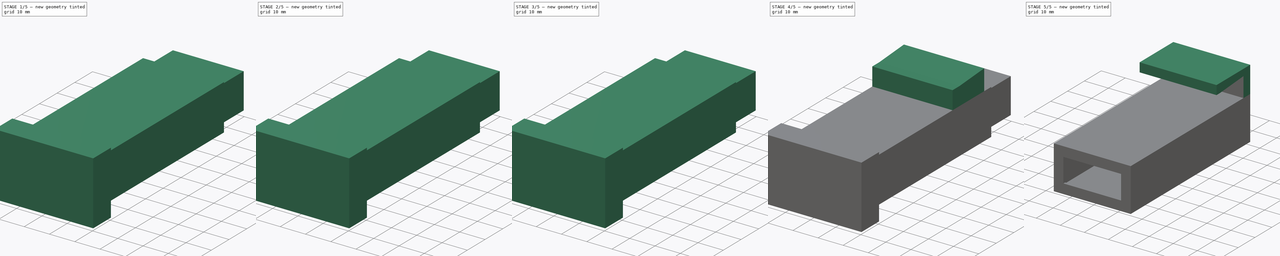
[diagram: build sequence overview — one tinted view per stage of 5, left to right]
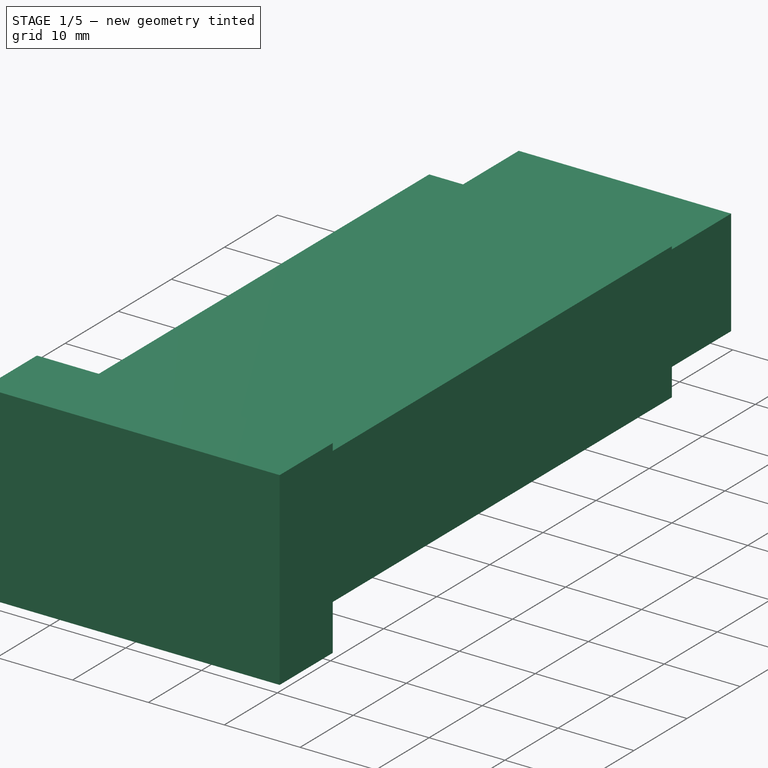
[diagram: stage 1 of 5 — iso view after this stage's code; geometry added in this stage tinted green]
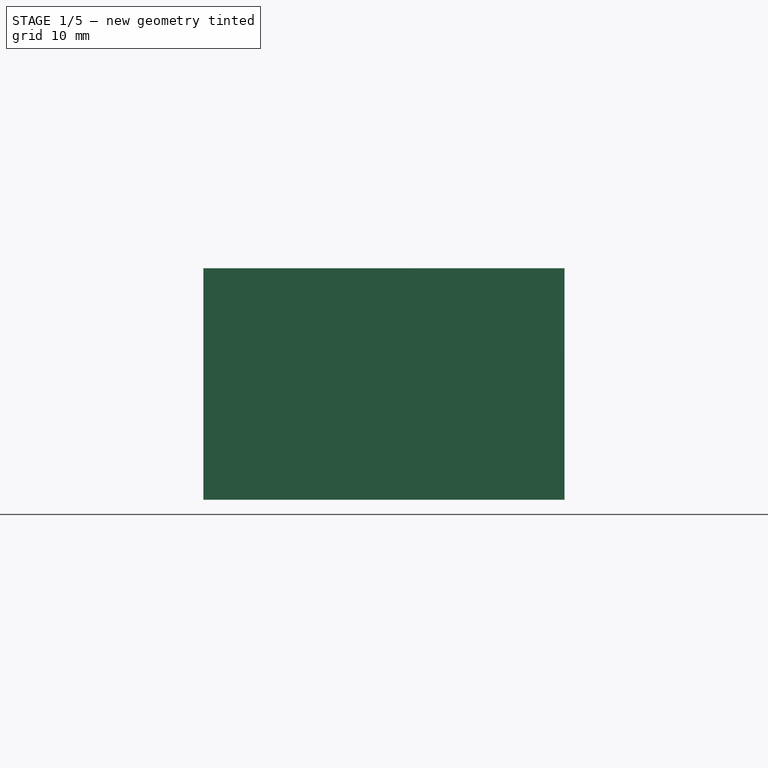
[diagram: stage 1 of 5 — front view after this stage's code; geometry added in this stage tinted green]
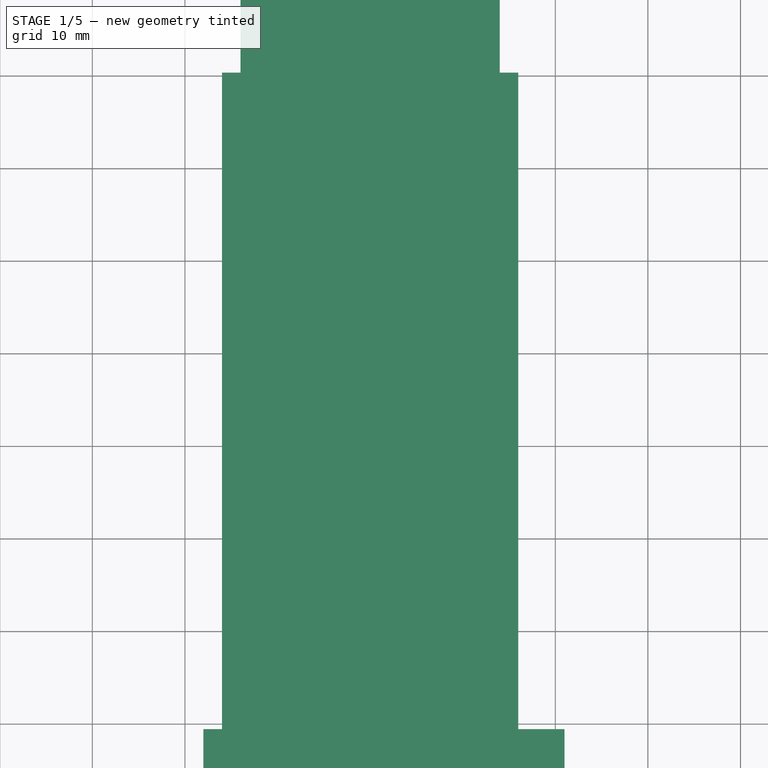
[diagram: stage 1 of 5 — top view after this stage's code; geometry added in this stage tinted green]
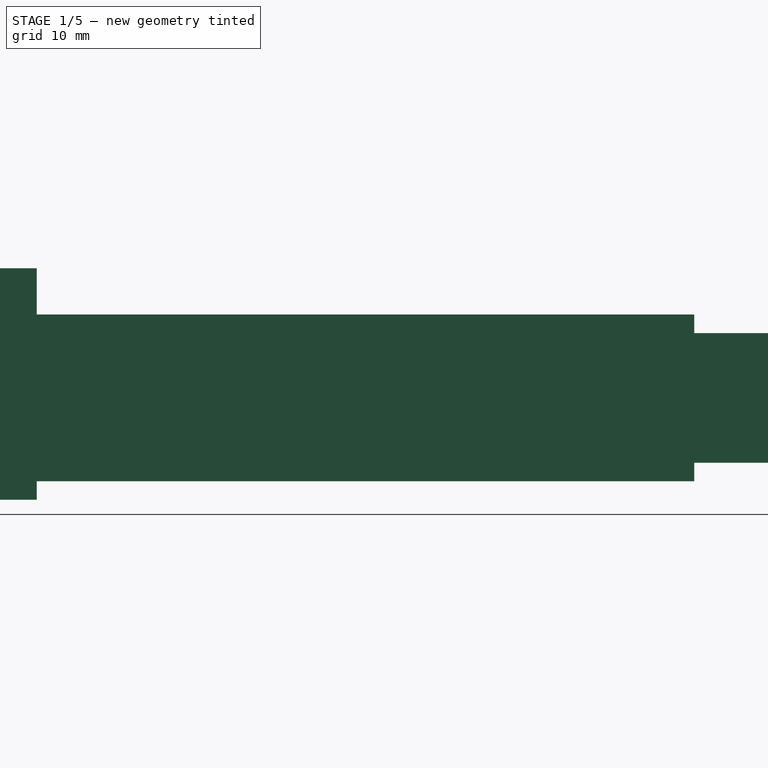
[diagram: stage 1 of 5 — right view after this stage's code; geometry added in this stage tinted green]
FCSTD DOCUMENT  (FreeCAD 0.20R)
Label: rtl_p53_holder
License: All rights reserved
LicenseURL: http://en.wikipedia.org/wiki/All_rights_reserved
objects: Part::Cut×15, Part::Feature×12, Part::Extrusion×11, Part::Box×5, Sketcher::SketchObject×1, Part::MultiFuse×1
note: 45 computed .brp shape members not serialized (recipe doc carries the construction recipe); baked Part::Feature solids carry a one-line shape summary decoded from their .brp

FEATURE [Part::Feature] Part__Feature  label="RTL SDR v2"
  shape: bbox 27 x 197.1 x 13.16 mm, 32 faces (baked)
FEATURE [Part::Box] Box  label="Cube"
  AttacherType = Attacher::AttachEngine3D
  Height = 18
  Length = 32
  Placement = pos=(-16,-3,-9) rot=(0,0,1;0rad)
  Width = 73
FEATURE [Part::Feature] Part__Feature001  label="RTL SDR v003"
  Placement = pos=(0,0,42) rot=(0,0,1;0rad)
  shape: bbox 27 x 197.1 x 13.16 mm, 32 faces (baked)
FEATURE [Part::Cut] Cut
  Base = -> Box
  Tool = -> Part__Feature
FEATURE [Part::Feature] Face004
  shape: bbox 0.9226 x 70 x 0.997 mm, 1 faces, 0 solids (baked)
FEATURE [Part::Extrusion] Extrusion004
  Base = -> Face004
  Dir = (-0.0737615,0,-0.0675222)
  DirMode = 0
  FaceMakerClass = Part::FaceMakerBullseye
  LengthFwd = 0
  LengthRev = 0
  Solid = true
  Symmetric = false
FEATURE [Part::Box] Box002  label="Cube002"
  AttacherType = Attacher::AttachEngine3D
  Height = 25
  Length = 39
  Placement = pos=(-18,-11,-11) rot=(0,0,1;0rad)
  Width = 10
FEATURE [Part::Box] Box003  label="Cube003"
  AttacherType = Attacher::AttachEngine3D
  Height = 10
  Length = 24
  Placement = pos=(-12,-4,-5) rot=(0,0,1;0rad)
  Width = 20
FEATURE [Part::Box] Box004  label="Cube004"
  AttacherType = Attacher::AttachEngine3D
  Height = 14
  Length = 28
  Placement = pos=(-14,0,-7) rot=(0,0,1;0rad)
  Width = 84
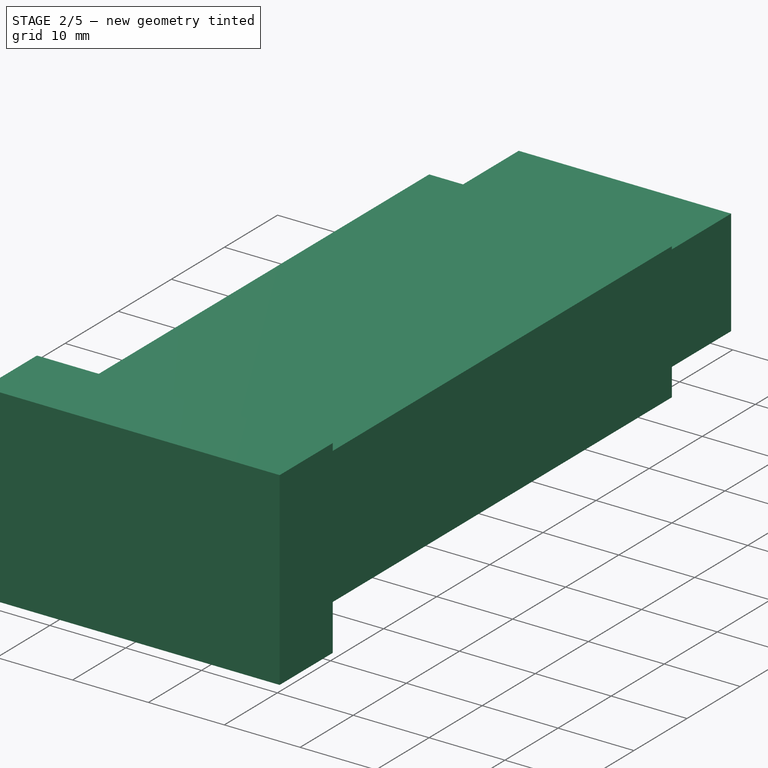
[diagram: stage 2 of 5 — iso view after this stage's code; geometry added in this stage tinted green]
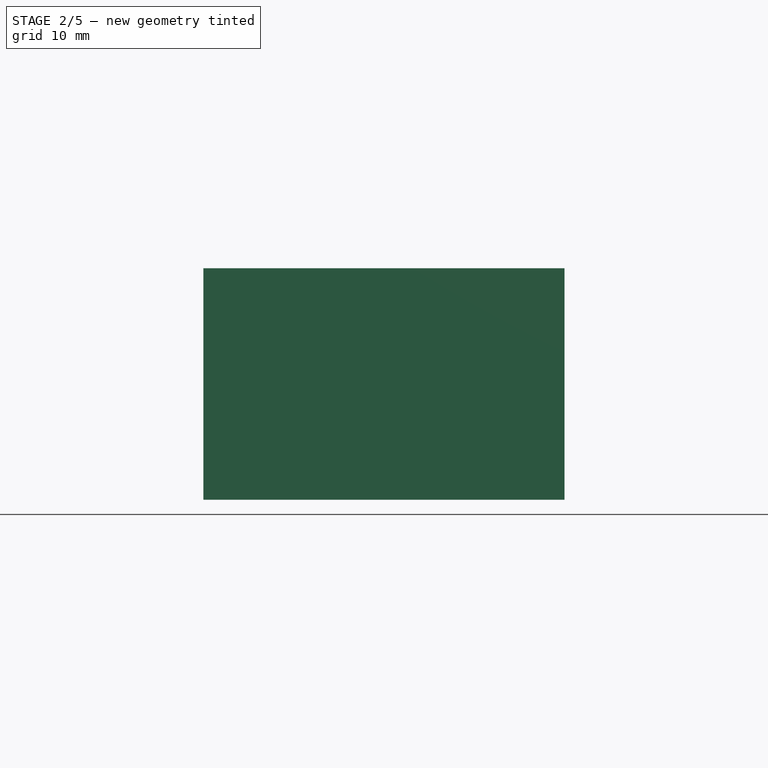
[diagram: stage 2 of 5 — front view after this stage's code; geometry added in this stage tinted green]
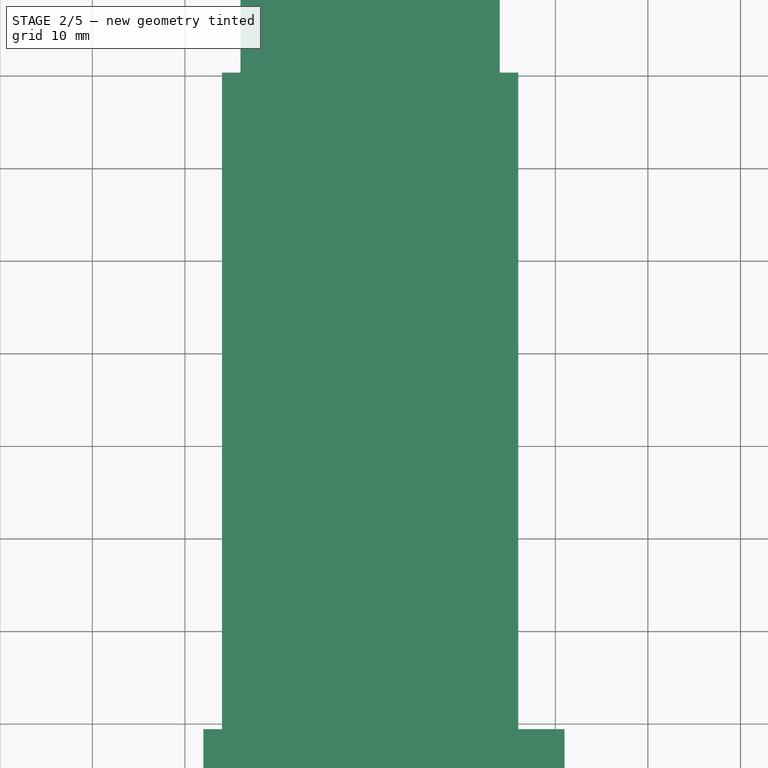
[diagram: stage 2 of 5 — top view after this stage's code; geometry added in this stage tinted green]
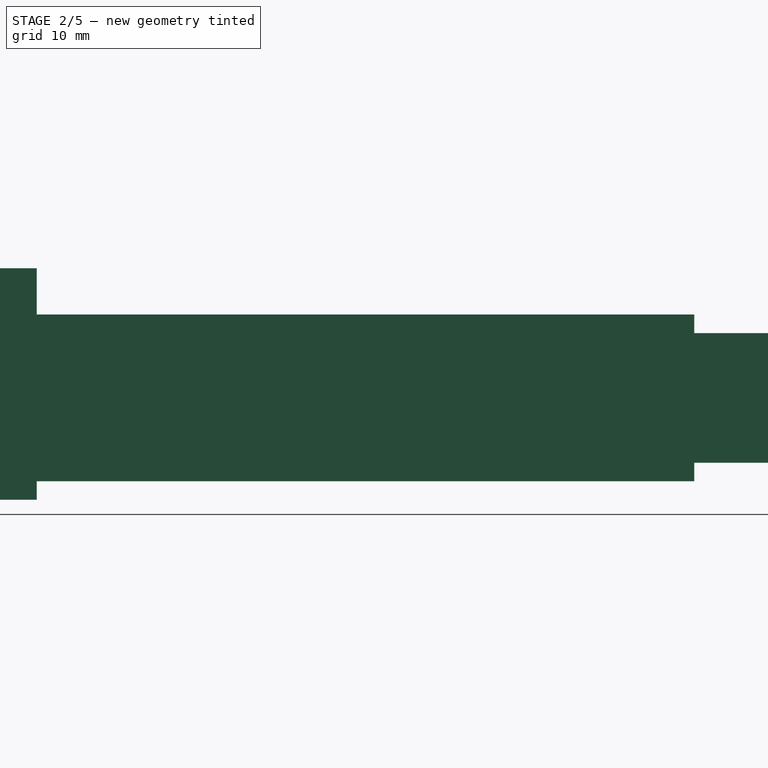
[diagram: stage 2 of 5 — right view after this stage's code; geometry added in this stage tinted green]
FEATURE [Part::Feature] Face
  shape: bbox 2e-07 x 70 x 10.24 mm, 1 faces, 0 solids (baked)
FEATURE [Part::Extrusion] Extrusion
  Base = -> Face
  Dir = (-0.1,0,0)
  DirMode = 0
  FaceMakerClass = Part::FaceMakerBullseye
  LengthFwd = 0
  LengthRev = 0
  Solid = true
  Symmetric = false
FEATURE [Part::Feature] Face006
  shape: bbox 13.5 x 70 x 0.5396 mm, 1 faces, 0 solids (baked)
FEATURE [Part::Extrusion] Extrusion007
  Base = -> Face006
  Dir = (-0.00443094,0,0.0999018)
  DirMode = 0
  FaceMakerClass = Part::FaceMakerBullseye
  LengthFwd = 0
  LengthRev = 0
  Solid = true
  Symmetric = false
FEATURE [Part::Feature] Face007
  shape: bbox 0.9226 x 70 x 0.997 mm, 1 faces, 0 solids (baked)
FEATURE [Part::Extrusion] Extrusion008
  Base = -> Face007
  Dir = (-0.0730292,0,0.0683135)
  DirMode = 0
  FaceMakerClass = Part::FaceMakerBullseye
  LengthFwd = 0
  LengthRev = 0
  Solid = true
  Symmetric = false
FEATURE [Part::Cut] Cut002
  Base = -> Cut
  Tool = -> Extrusion004
FEATURE [Part::Cut] Cut003
  Base = -> Cut002
  Tool = -> Extrusion
FEATURE [Part::Cut] Cut004
  Base = -> Cut003
  Tool = -> Extrusion007
FEATURE [Part::Cut] Cut005
  Base = -> Cut004
  Tool = -> Extrusion008
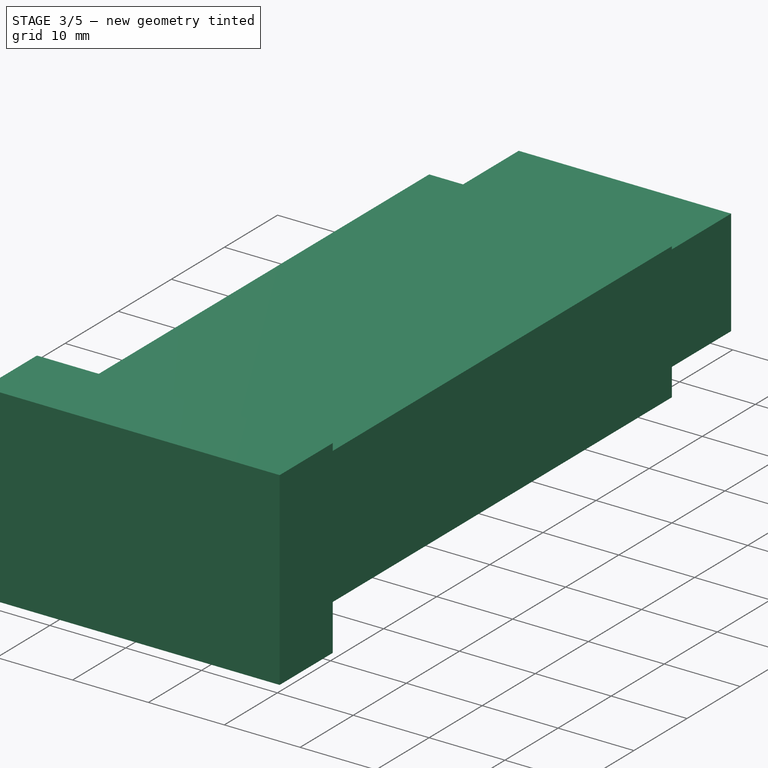
[diagram: stage 3 of 5 — iso view after this stage's code; geometry added in this stage tinted green]
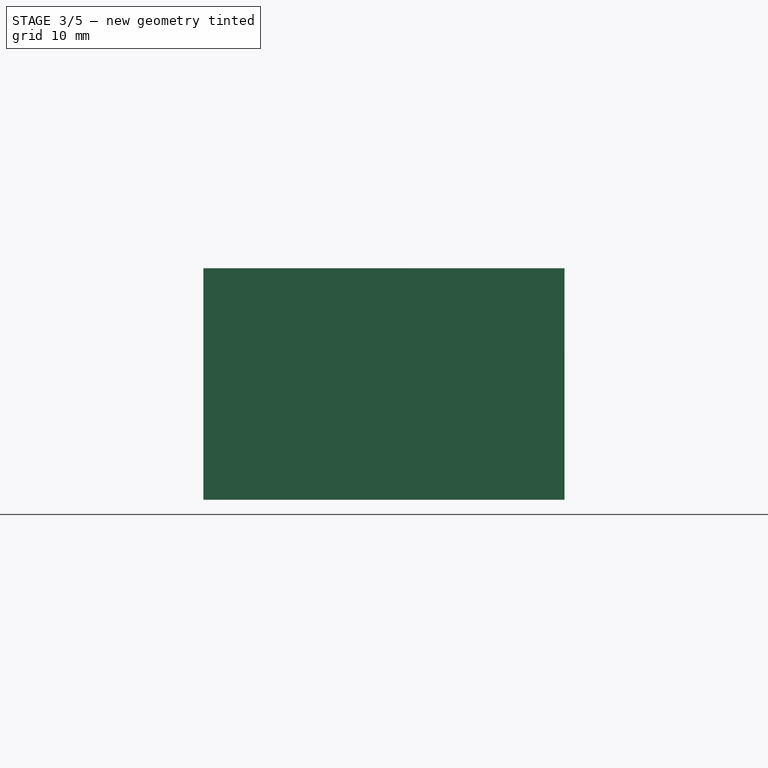
[diagram: stage 3 of 5 — front view after this stage's code; geometry added in this stage tinted green]
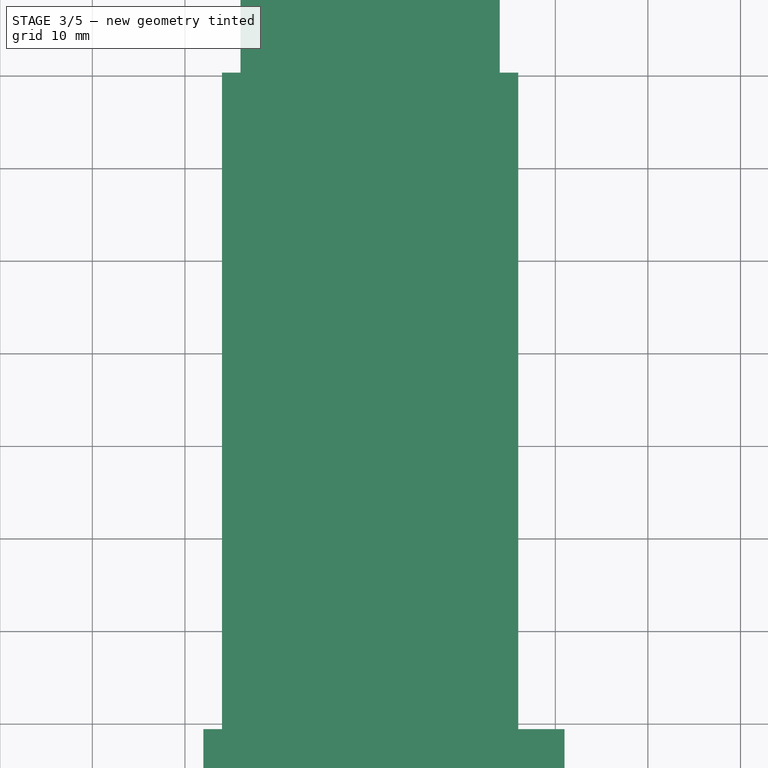
[diagram: stage 3 of 5 — top view after this stage's code; geometry added in this stage tinted green]
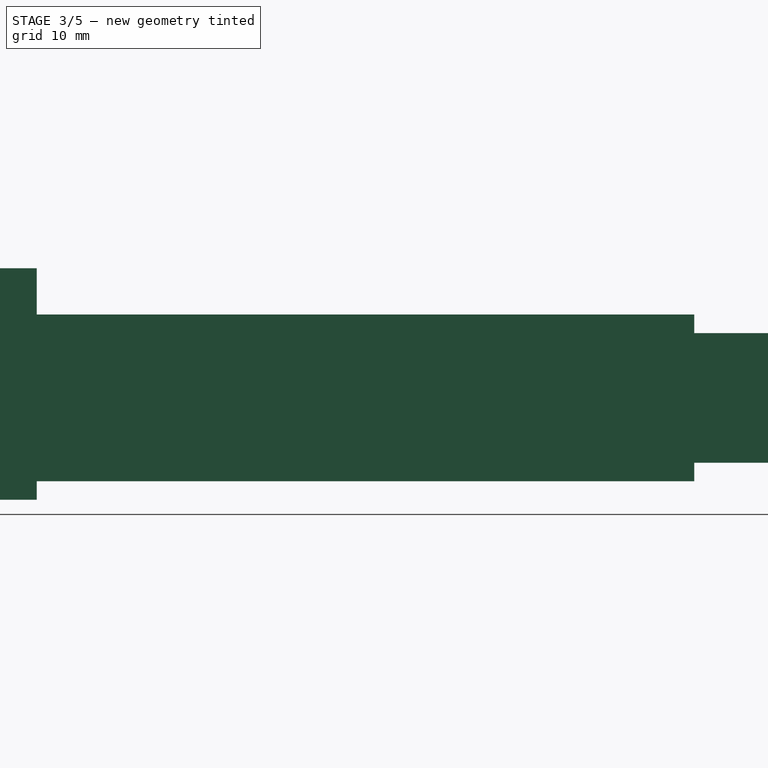
[diagram: stage 3 of 5 — right view after this stage's code; geometry added in this stage tinted green]
FEATURE [Part::Feature] Face008
  shape: bbox 13.5 x 70 x 0.5396 mm, 1 faces, 0 solids (baked)
FEATURE [Part::Extrusion] Extrusion009
  Base = -> Face008
  Dir = (0.010039,0,0.0994948)
  DirMode = 0
  FaceMakerClass = Part::FaceMakerBullseye
  LengthFwd = 0
  LengthRev = 0
  Solid = true
  Symmetric = false
FEATURE [Part::Feature] Face010
  shape: bbox 0.9226 x 70 x 0.997 mm, 1 faces, 0 solids (baked)
FEATURE [Part::Extrusion] Extrusion012
  Base = -> Face010
  Dir = (0.0737615,0,0.0675222)
  DirMode = 0
  FaceMakerClass = Part::FaceMakerBullseye
  LengthFwd = 0
  LengthRev = 0
  Solid = true
  Symmetric = false
FEATURE [Part::Feature] Face011
  shape: bbox 2e-07 x 70 x 10.24 mm, 1 faces, 0 solids (baked)
FEATURE [Part::Extrusion] Extrusion013
  Base = -> Face011
  Dir = (0.1,0,0)
  DirMode = 0
  FaceMakerClass = Part::FaceMakerBullseye
  LengthFwd = 0
  LengthRev = 0
  Solid = true
  Symmetric = false
FEATURE [Part::Cut] Cut006
  Base = -> Cut005
  Tool = -> Extrusion009
FEATURE [Part::Cut] Cut007
  Base = -> Cut006
  Tool = -> Extrusion012
FEATURE [Part::Cut] Cut008
  Base = -> Cut007
  Tool = -> Extrusion013
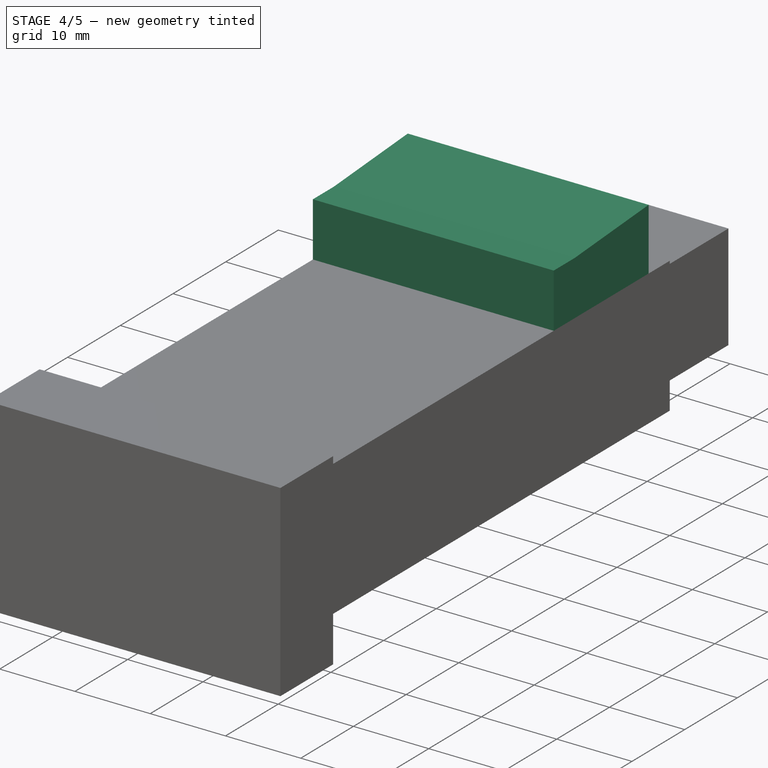
[diagram: stage 4 of 5 — iso view after this stage's code; geometry added in this stage tinted green]
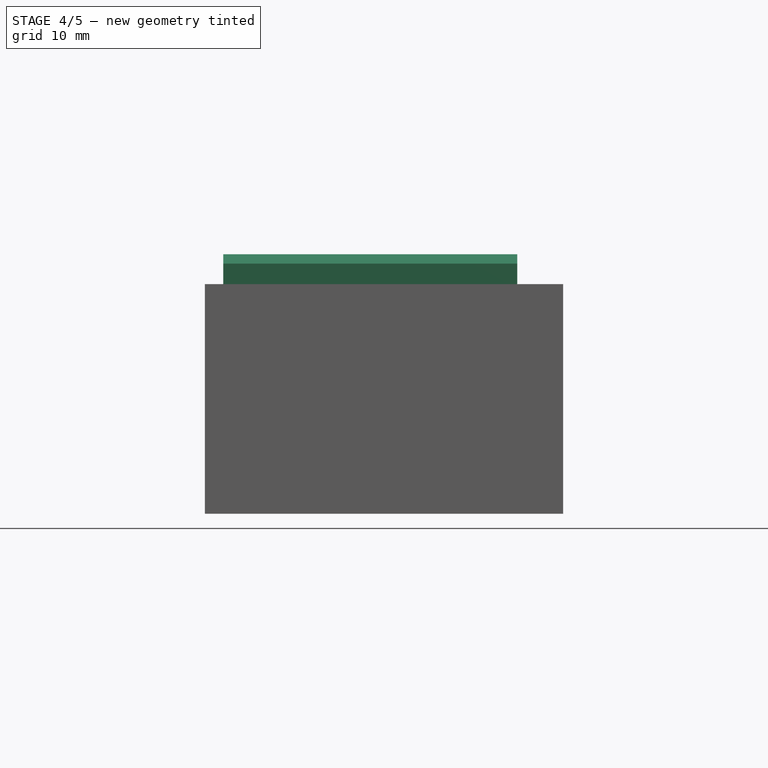
[diagram: stage 4 of 5 — front view after this stage's code; geometry added in this stage tinted green]
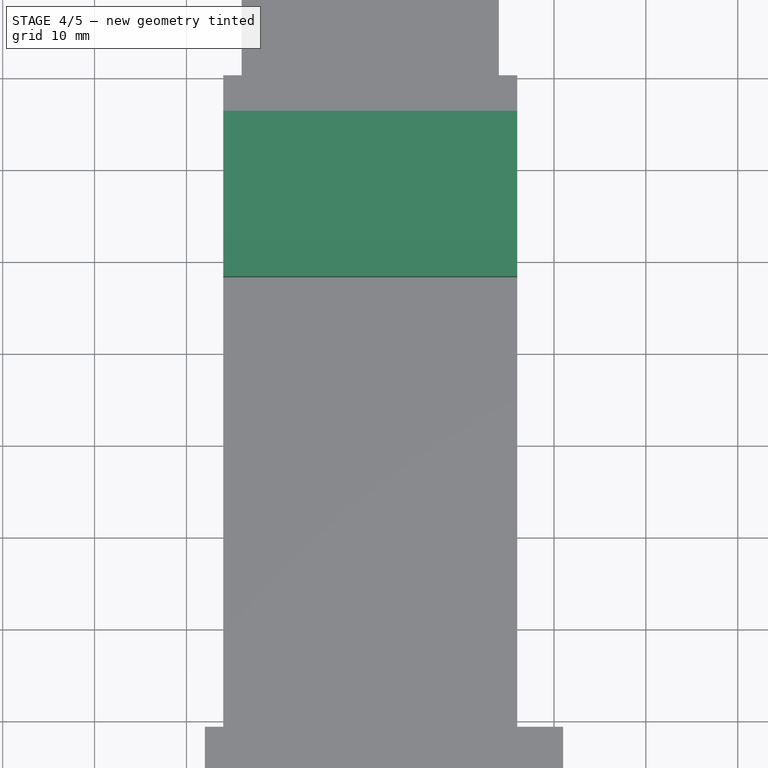
[diagram: stage 4 of 5 — top view after this stage's code; geometry added in this stage tinted green]
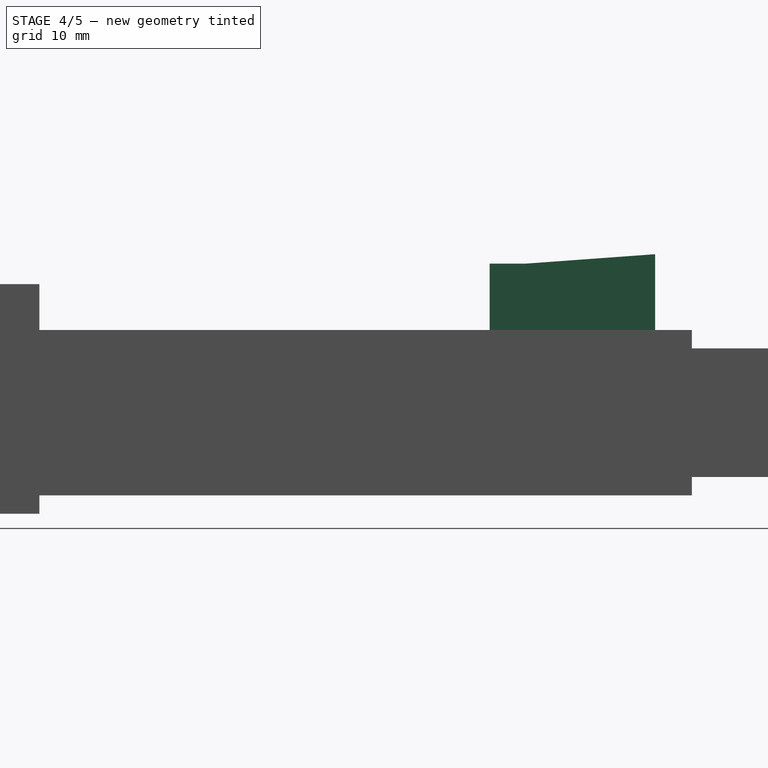
[diagram: stage 4 of 5 — right view after this stage's code; geometry added in this stage tinted green]
FEATURE [Sketcher::SketchObject] Sketch
  FullyConstrained = true
  Placement = pos=(0,0,0) rot=(0.57735,0.57735,0.57735;2.0944rad)
  sketch-geometry (6):
    g0: LineSegment StartX=-2e-16 StartY=0 StartZ=0 EndX=18 EndY=0 EndZ=0
    g1: LineSegment StartX=-2e-16 StartY=0 StartZ=0 EndX=-2e-16 EndY=7.23 EndZ=0
    g2: LineSegment StartX=18 StartY=0 StartZ=0 EndX=18 EndY=8.25 EndZ=0
    g3: LineSegment StartX=-2e-16 StartY=7.23 StartZ=0 EndX=4 EndY=7.23 EndZ=0
    g4: LineSegment StartX=4 StartY=7.23 StartZ=0 EndX=18 EndY=8.25 EndZ=0
    g5: GeomPoint X=-2e-16 Y=0 Z=0
  constraints (15):
    c: Horizontal(g0)
    c: DistanceX(g0,g0) = 18
    c: Coincident(g1,g0)
    c: Vertical(g1)
    c: Coincident(g2,g0)
    c: Vertical(g2)
    c: Coincident(g3,g1)
    c: Horizontal(g3)
    c: DistanceY(g1,g1) = 7.23
    c: DistanceY(g2,g2) = 8.25
    c: DistanceX(g3,g3) = 4
    c: Coincident(g4,g3)
    c: Coincident(g4,g2)
    c: Coincident(g5,g-1)
    c: Coincident(g0,g5)
FEATURE [Part::Extrusion] Extrude
  Base = -> Sketch
  Dir = (1,0,0)
  DirMode = 2
  FaceMakerClass = Part::FaceMakerBullseye
  LengthFwd = 32
  LengthRev = 0
  Placement = pos=(-16,48,9) rot=(0,0,1;0rad)
  Solid = true
  Symmetric = false
FEATURE [Part::Feature] Face012
  shape: bbox 0.9226 x 70 x 0.997 mm, 1 faces, 0 solids (baked)
FEATURE [Part::Extrusion] Extrusion014
  Base = -> Face012
  Dir = (0.0730292,0,-0.0683135)
  DirMode = 0
  FaceMakerClass = Part::FaceMakerBullseye
  LengthFwd = 0
  LengthRev = 0
  Solid = true
  Symmetric = false
FEATURE [Part::Feature] Face013
  shape: bbox 13.5 x 70 x 0.5396 mm, 1 faces, 0 solids (baked)
FEATURE [Part::Extrusion] Extrusion015
  Base = -> Face013
  Dir = (0.00443094,0,-0.0999018)
  DirMode = 0
  FaceMakerClass = Part::FaceMakerBullseye
  LengthFwd = 0
  LengthRev = 0
  Solid = true
  Symmetric = false
FEATURE [Part::Feature] Face014
  shape: bbox 13.5 x 70 x 0.5396 mm, 1 faces, 0 solids (baked)
FEATURE [Part::Extrusion] Extrusion016
  Base = -> Face014
  Dir = (-0.010039,0,-0.0994948)
  DirMode = 0
  FaceMakerClass = Part::FaceMakerBullseye
  LengthFwd = 0
  LengthRev = 0
  Solid = true
  Symmetric = false
FEATURE [Part::Cut] Cut009
  Base = -> Cut008
  Tool = -> Extrusion014
FEATURE [Part::Cut] Cut010
  Base = -> Cut009
  Tool = -> Extrusion015
FEATURE [Part::Cut] Cut011
  Base = -> Cut010
  Tool = -> Extrusion016
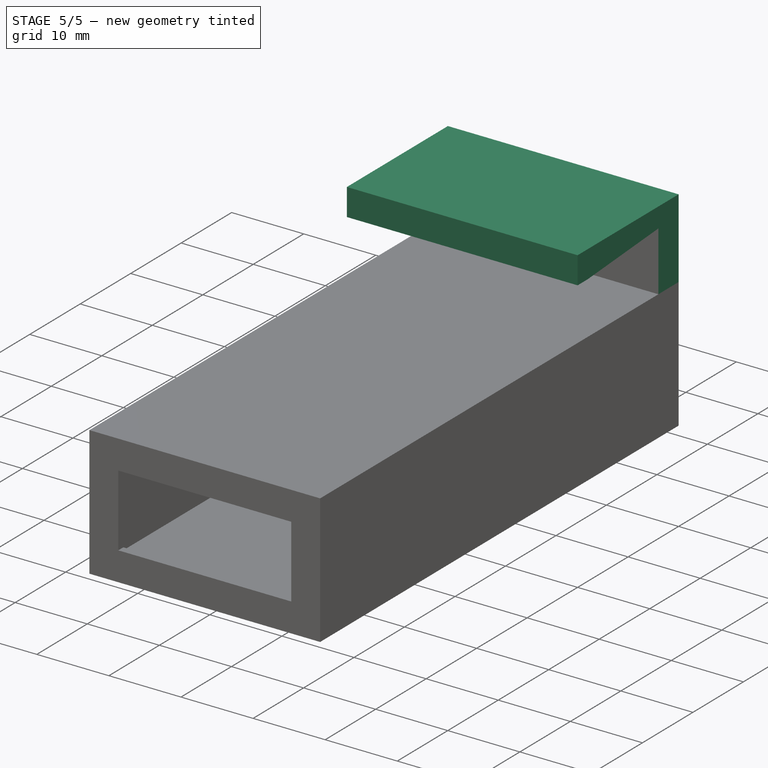
[diagram: stage 5 of 5 — iso view after this stage's code; geometry added in this stage tinted green]
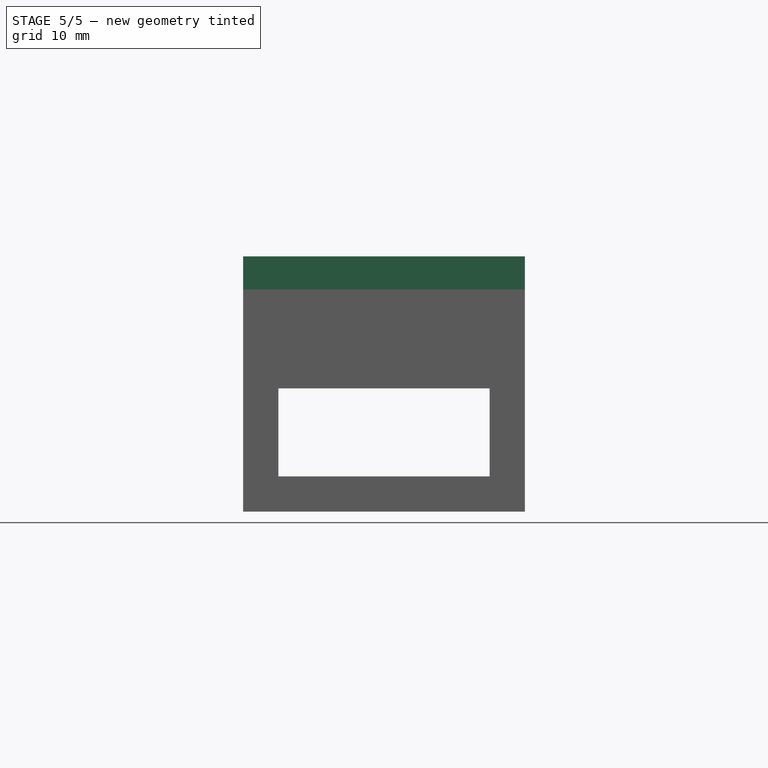
[diagram: stage 5 of 5 — front view after this stage's code; geometry added in this stage tinted green]
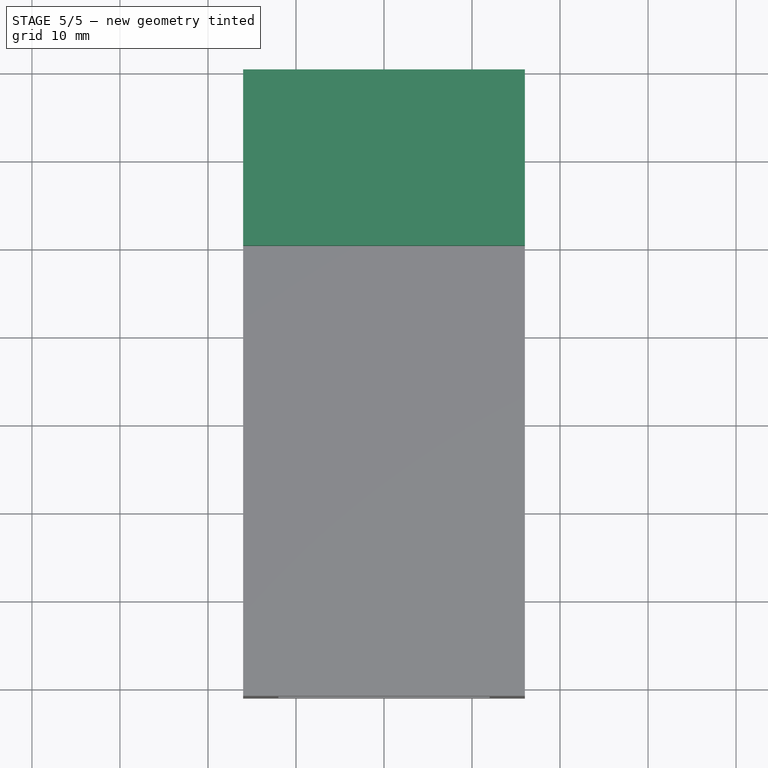
[diagram: stage 5 of 5 — top view after this stage's code; geometry added in this stage tinted green]
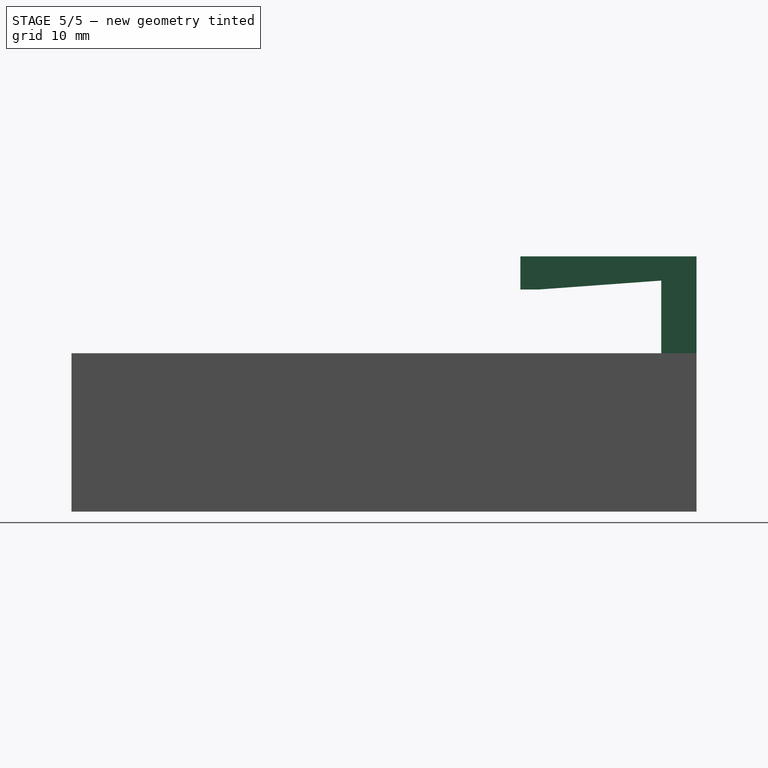
[diagram: stage 5 of 5 — right view after this stage's code; geometry added in this stage tinted green]
FEATURE [Part::Box] Box001  label="Cube001"
  AttacherType = Attacher::AttachEngine3D
  Height = 11
  Length = 32
  Placement = pos=(-16,50,9) rot=(0,0,1;0rad)
  Width = 20
FEATURE [Part::Cut] Cut001
  Base = -> Box001
  Tool = -> Extrude
FEATURE [Part::MultiFuse] Fusion
  Shapes = -> [Cut011,Cut001]
FEATURE [Part::Cut] Cut012
  Base = -> Fusion
  Tool = -> Box002
FEATURE [Part::Cut] Cut013
  Base = -> Cut012
  Tool = -> Box003
FEATURE [Part::Cut] Cut014
  Base = -> Cut013
  Tool = -> Box004
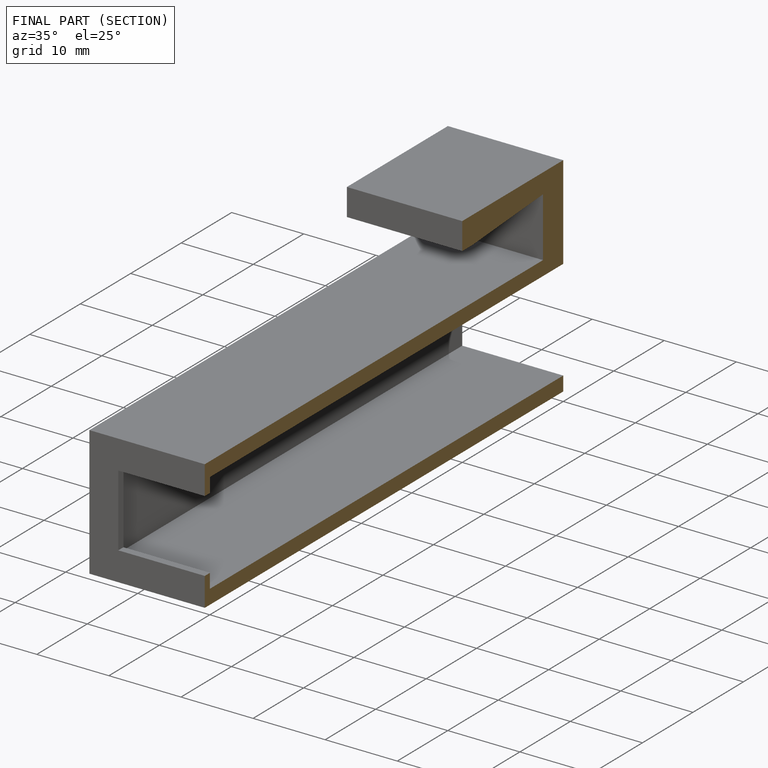
[diagram: finished part — half-section view (interior)]
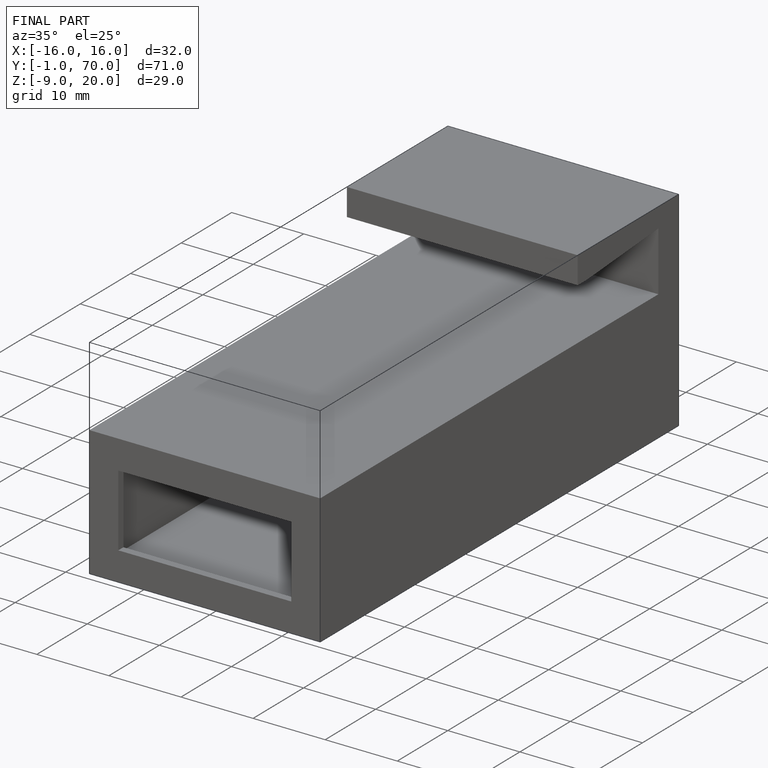
[diagram: finished part — iso view with bounding-box wireframe]
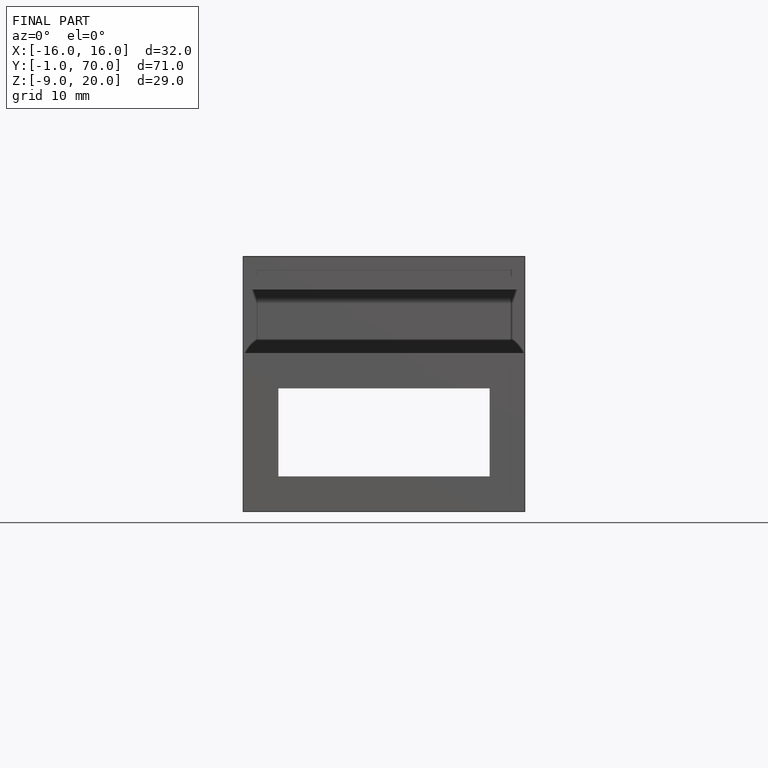
[diagram: finished part — front view with bounding-box wireframe]
